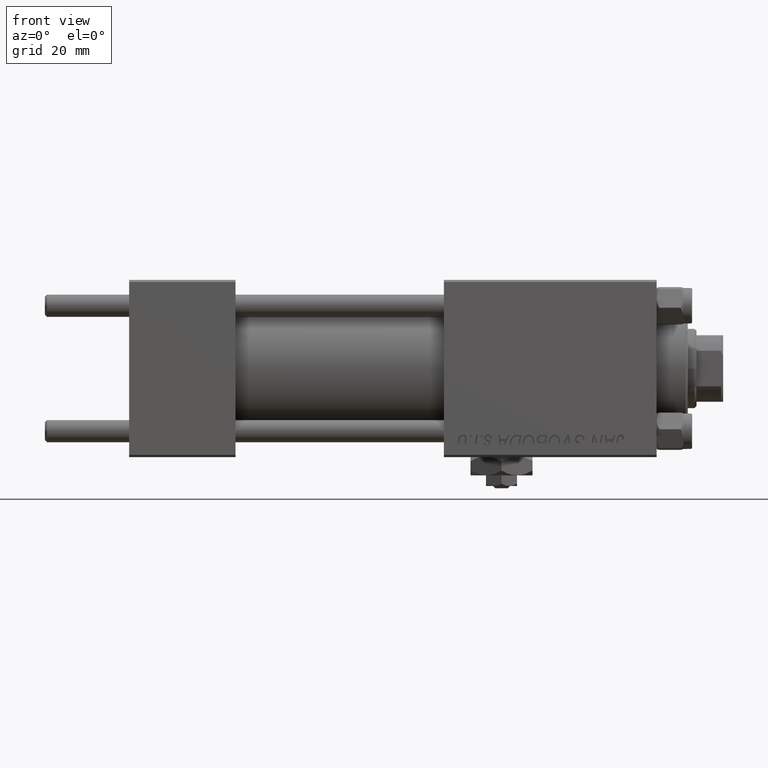
[diagram: clean part render]
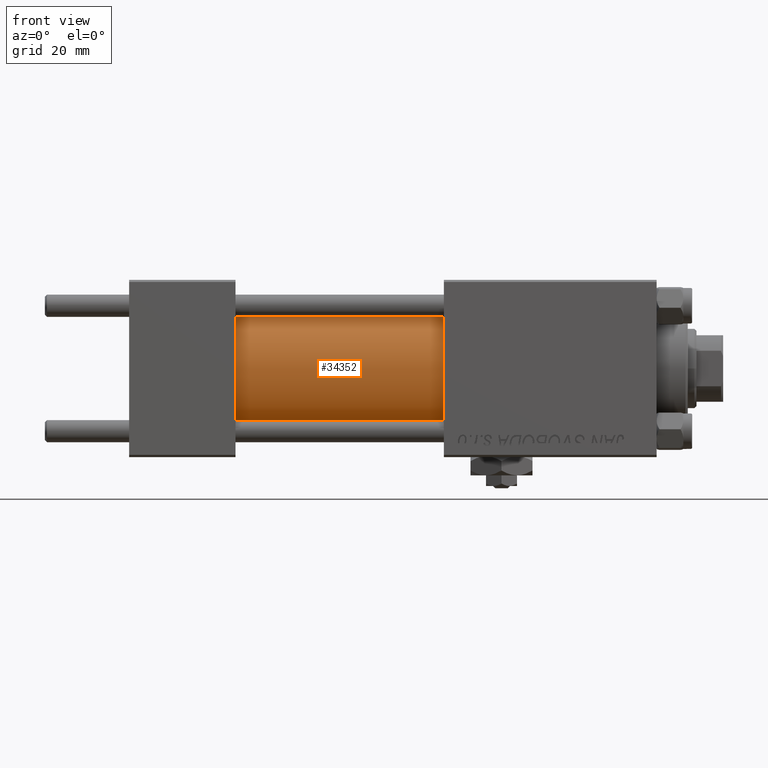
[diagram: same view with one face highlighted and labeled with its STEP entity id]
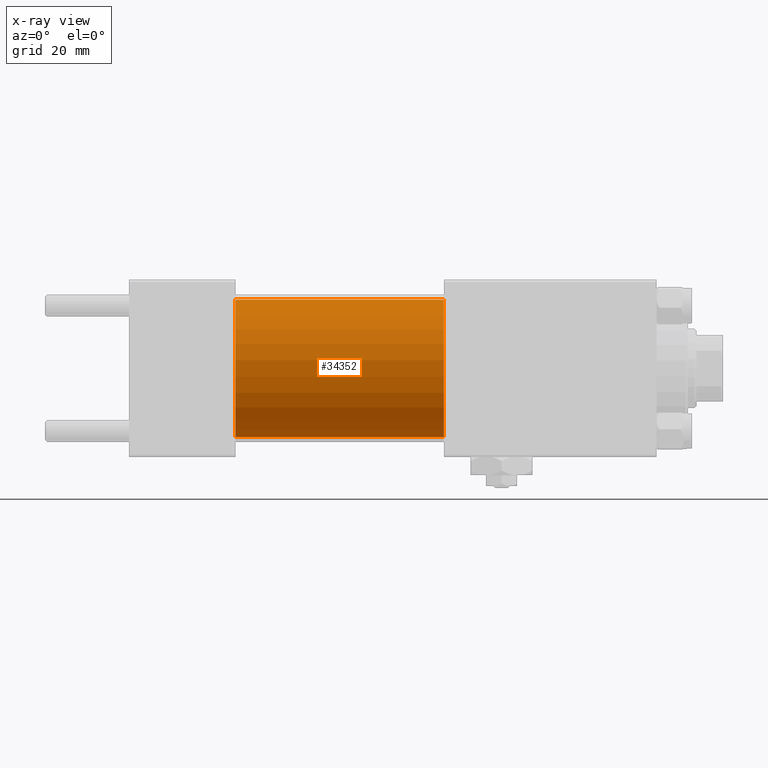
[diagram: x-ray of the same camera — body ghosted, the highlighted face saturated]
A machine part, front view. The second image highlights one B-rep face of the part: STEP entity #34352.
The next image is the same camera in x-ray: the body ghosted, the highlighted face saturated — about 0% of this face is hidden behind the body in this view.
In plain terms, the highlighted cylindrical surface (partial cylindrical patch) has radius 15.5 mm, axis along (-1, -0, -0).
Its self-contained STEP definition (entity closure, byte-faithful):
#2351 = VERTEX_POINT ( 'NONE', #36209 ) ;
#2371 = ORIENTED_EDGE ( 'NONE', *, *, #10812, .T. ) ;
#2431 = DIRECTION ( 'NONE',  ( 0.000000000000000000, 0.000000000000000000, -1.000000000000000000 ) ) ;
#2583 = DIRECTION ( 'NONE',  ( 1.000000000000000000, 0.000000000000000000, 0.000000000000000000 ) ) ;
#4896 = VERTEX_POINT ( 'NONE', #8847 ) ;
#8340 = CARTESIAN_POINT ( 'NONE',  ( 71.00000000000001421, 0.000000000000000000, 15.50000000000000000 ) ) ;
#8847 = CARTESIAN_POINT ( 'NONE',  ( 71.00000000000001421, 0.000000000000000000, 15.50000000000000000 ) ) ;
#9071 = CARTESIAN_POINT ( 'NONE',  ( 71.00000000000001421, 1.898202538678397557E-15, -15.50000000000000000 ) ) ;
#9186 = ORIENTED_EDGE ( 'NONE', *, *, #30434, .F. ) ;
#10812 = EDGE_CURVE ( 'NONE', #27714, #2351, #29770, .T. ) ;
#12875 = DIRECTION ( 'NONE',  ( 0.000000000000000000, 0.000000000000000000, 1.000000000000000000 ) ) ;
#13498 = LINE ( 'NONE', #9071, #50463 ) ;
#16485 = AXIS2_PLACEMENT_3D ( 'NONE', #35013, #23024, #2431 ) ;
#21197 = CYLINDRICAL_SURFACE ( 'NONE', #48297, 15.50000000000000000 ) ;
#22153 = CARTESIAN_POINT ( 'NONE',  ( 24.00000000000000000, 0.000000000000000000, 0.000000000000000000 ) ) ;
#22408 = DIRECTION ( 'NONE',  ( 0.000000000000000000, 0.000000000000000000, 1.000000000000000000 ) ) ;
#23024 = DIRECTION ( 'NONE',  ( 1.000000000000000000, 0.000000000000000000, 0.000000000000000000 ) ) ;
#24517 = EDGE_CURVE ( 'NONE', #25924, #2351, #13498, .T. ) ;
#25369 = CARTESIAN_POINT ( 'NONE',  ( 71.00000000000001421, 0.000000000000000000, 0.000000000000000000 ) ) ;
#25598 = AXIS2_PLACEMENT_3D ( 'NONE', #22153, #2583, #22408 ) ;
#25924 = VERTEX_POINT ( 'NONE', #40908 ) ;
#27709 = EDGE_LOOP ( 'NONE', ( #33576, #9186, #33253, #2371 ) ) ;
#27714 = VERTEX_POINT ( 'NONE', #44134 ) ;
#29053 = EDGE_CURVE ( 'NONE', #4896, #27714, #32557, .T. ) ;
#29770 = CIRCLE ( 'NONE', #25598, 15.50000000000000000 ) ;
#30434 = EDGE_CURVE ( 'NONE', #4896, #25924, #32349, .T. ) ;
#32349 = CIRCLE ( 'NONE', #16485, 15.50000000000000000 ) ;
#32557 = LINE ( 'NONE', #8340, #33939 ) ;
#33253 = ORIENTED_EDGE ( 'NONE', *, *, #29053, .T. ) ;
#33576 = ORIENTED_EDGE ( 'NONE', *, *, #24517, .F. ) ;
#33939 = VECTOR ( 'NONE', #48455, 1000.000000000000000 ) ;
#34352 = ADVANCED_FACE ( 'NONE', ( #40248 ), #21197, .T. ) ;
#35013 = CARTESIAN_POINT ( 'NONE',  ( 71.00000000000001421, 0.000000000000000000, 0.000000000000000000 ) ) ;
#36209 = CARTESIAN_POINT ( 'NONE',  ( 24.00000000000000000, 1.898202538678397557E-15, -15.50000000000000000 ) ) ;
#36339 = DIRECTION ( 'NONE',  ( -1.000000000000000000, -0.000000000000000000, -0.000000000000000000 ) ) ;
#40248 = FACE_OUTER_BOUND ( 'NONE', #27709, .T. ) ;
#40908 = CARTESIAN_POINT ( 'NONE',  ( 71.00000000000001421, 1.898202538678397557E-15, -15.50000000000000000 ) ) ;
#44001 = DIRECTION ( 'NONE',  ( -1.000000000000000000, -0.000000000000000000, -0.000000000000000000 ) ) ;
#44134 = CARTESIAN_POINT ( 'NONE',  ( 24.00000000000000000, 0.000000000000000000, 15.50000000000000000 ) ) ;
#48297 = AXIS2_PLACEMENT_3D ( 'NONE', #25369, #36339, #12875 ) ;
#48455 = DIRECTION ( 'NONE',  ( -1.000000000000000000, -0.000000000000000000, -0.000000000000000000 ) ) ;
#50463 = VECTOR ( 'NONE', #44001, 1000.000000000000000 ) ;